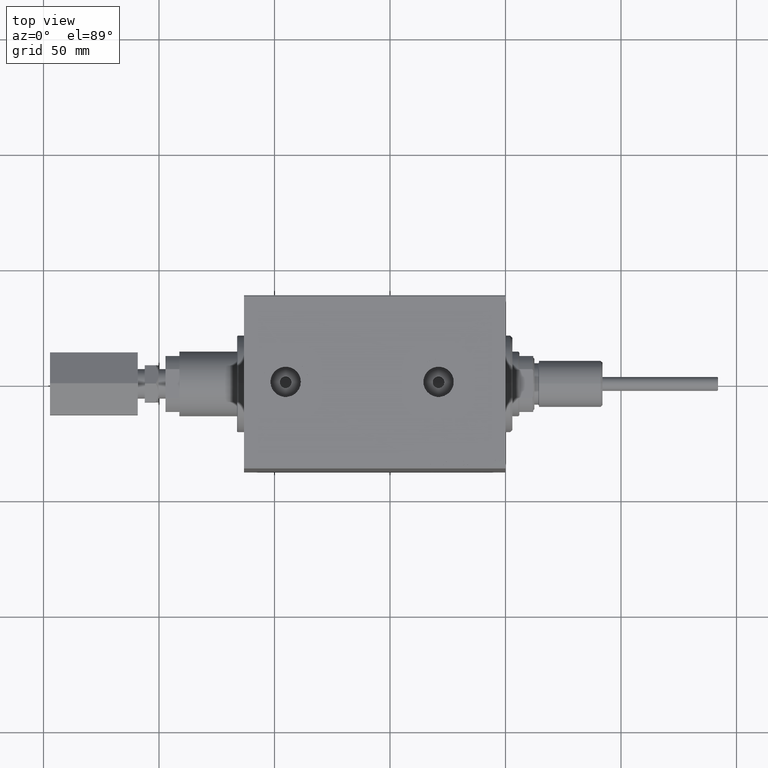
[diagram: clean part render]
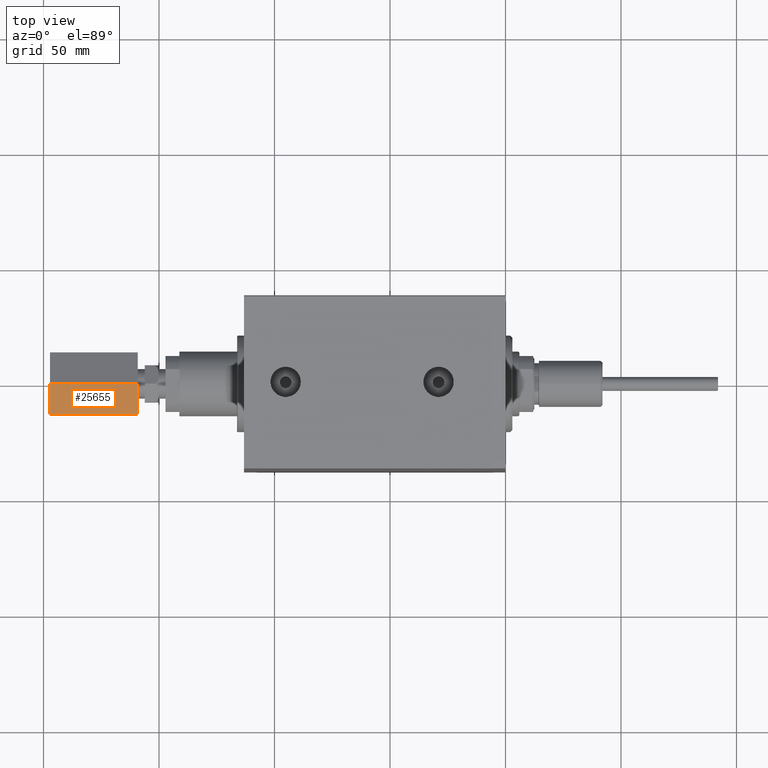
[diagram: same view with one face highlighted and labeled with its STEP entity id]
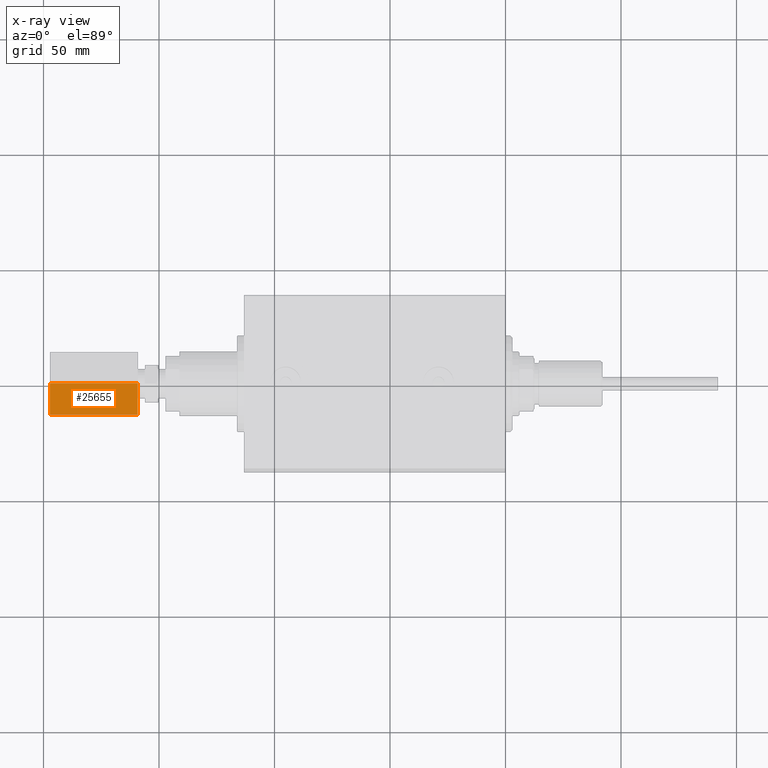
[diagram: x-ray of the same camera — body ghosted, the highlighted face saturated]
A machine part, top view. The second image highlights one B-rep face of the part: STEP entity #25655.
The next image is the same camera in x-ray: the body ghosted, the highlighted face saturated — about 0% of this face is hidden behind the body in this view.
In plain terms, the highlighted planar face has unit normal (0, 0.5, -0.866).
Its self-contained STEP definition (entity closure, byte-faithful):
#947 = LINE ( 'NONE', #7629, #27026 ) ;
#1296 = VECTOR ( 'NONE', #32989, 1000.000000000000227 ) ;
#1416 = ORIENTED_EDGE ( 'NONE', *, *, #40837, .T. ) ;
#2079 = LINE ( 'NONE', #43036, #42956 ) ;
#3772 = DIRECTION ( 'NONE',  ( -1.000000000000000000, -0.000000000000000000, -0.000000000000000000 ) ) ;
#7465 = CARTESIAN_POINT ( 'NONE',  ( 84.00000000000000000, -15.58845726811989607, -5.983477626642369342E-15 ) ) ;
#7629 = CARTESIAN_POINT ( 'NONE',  ( 84.00000000000000000, -7.794228634059949812, 13.49999999999999822 ) ) ;
#9227 = DIRECTION ( 'NONE',  ( 0.000000000000000000, -0.4999999999999997780, -0.8660254037844387076 ) ) ;
#11050 = VERTEX_POINT ( 'NONE', #11536 ) ;
#11536 = CARTESIAN_POINT ( 'NONE',  ( 46.00000000000000711, -15.58845726811989607, -5.983477626642369342E-15 ) ) ;
#11851 = CARTESIAN_POINT ( 'NONE',  ( 46.00000000000000711, -7.794228634059949812, 13.49999999999999822 ) ) ;
#15072 = LINE ( 'NONE', #7465, #24893 ) ;
#17017 = ORIENTED_EDGE ( 'NONE', *, *, #22706, .T. ) ;
#17766 = PLANE ( 'NONE',  #27103 ) ;
#18407 = LINE ( 'NONE', #40157, #1296 ) ;
#19858 = ORIENTED_EDGE ( 'NONE', *, *, #46397, .F. ) ;
#20964 = DIRECTION ( 'NONE',  ( 0.000000000000000000, 0.4999999999999998335, 0.8660254037844387076 ) ) ;
#21456 = FACE_OUTER_BOUND ( 'NONE', #29332, .T. ) ;
#21624 = VERTEX_POINT ( 'NONE', #11851 ) ;
#22706 = EDGE_CURVE ( 'NONE', #41645, #21624, #947, .T. ) ;
#23582 = CARTESIAN_POINT ( 'NONE',  ( 84.00000000000000000, -7.794228634059949812, 13.49999999999999822 ) ) ;
#24893 = VECTOR ( 'NONE', #3772, 1000.000000000000000 ) ;
#25655 = ADVANCED_FACE ( 'NONE', ( #21456 ), #17766, .F. ) ;
#27026 = VECTOR ( 'NONE', #38446, 1000.000000000000000 ) ;
#27103 = AXIS2_PLACEMENT_3D ( 'NONE', #43962, #33074, #20964 ) ;
#28046 = ORIENTED_EDGE ( 'NONE', *, *, #34068, .F. ) ;
#29332 = EDGE_LOOP ( 'NONE', ( #1416, #28046, #19858, #17017 ) ) ;
#32989 = DIRECTION ( 'NONE',  ( 0.000000000000000000, -0.4999999999999997780, -0.8660254037844387076 ) ) ;
#33074 = DIRECTION ( 'NONE',  ( 0.000000000000000000, 0.8660254037844387076, -0.4999999999999998335 ) ) ;
#34068 = EDGE_CURVE ( 'NONE', #46316, #11050, #15072, .T. ) ;
#38446 = DIRECTION ( 'NONE',  ( -1.000000000000000000, -0.000000000000000000, -0.000000000000000000 ) ) ;
#40157 = CARTESIAN_POINT ( 'NONE',  ( 84.00000000000000000, -7.794228634059949812, 13.49999999999999822 ) ) ;
#40395 = CARTESIAN_POINT ( 'NONE',  ( 84.00000000000000000, -15.58845726811989607, -5.983477626642369342E-15 ) ) ;
#40837 = EDGE_CURVE ( 'NONE', #21624, #11050, #2079, .T. ) ;
#41645 = VERTEX_POINT ( 'NONE', #23582 ) ;
#42956 = VECTOR ( 'NONE', #9227, 1000.000000000000227 ) ;
#43036 = CARTESIAN_POINT ( 'NONE',  ( 46.00000000000000711, -7.794228634059949812, 13.49999999999999822 ) ) ;
#43962 = CARTESIAN_POINT ( 'NONE',  ( 84.00000000000000000, -7.794228634059949812, 13.49999999999999822 ) ) ;
#46316 = VERTEX_POINT ( 'NONE', #40395 ) ;
#46397 = EDGE_CURVE ( 'NONE', #41645, #46316, #18407, .T. ) ;